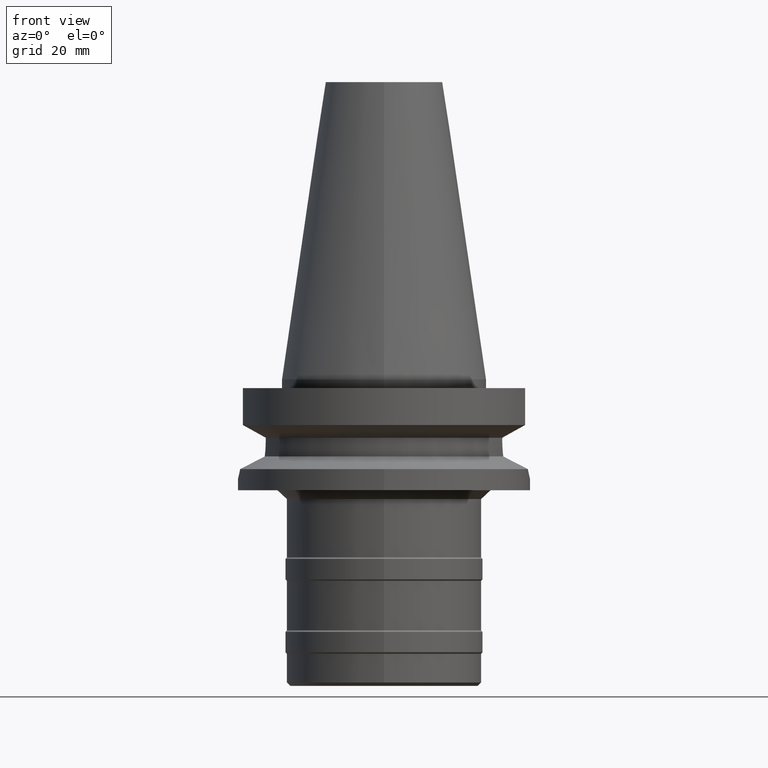
[diagram: clean part render]
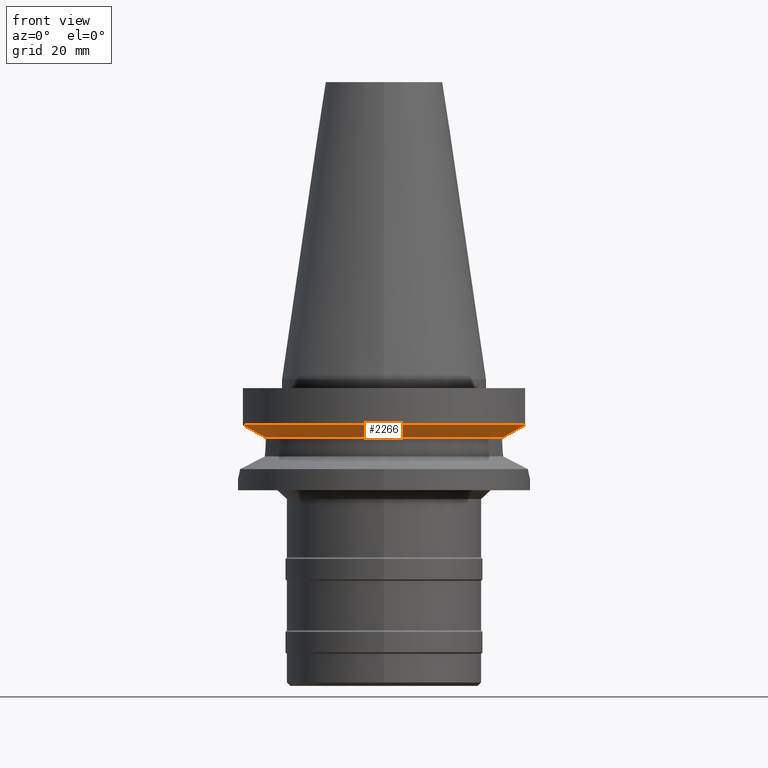
[diagram: same view with one face highlighted and labeled with its STEP entity id]
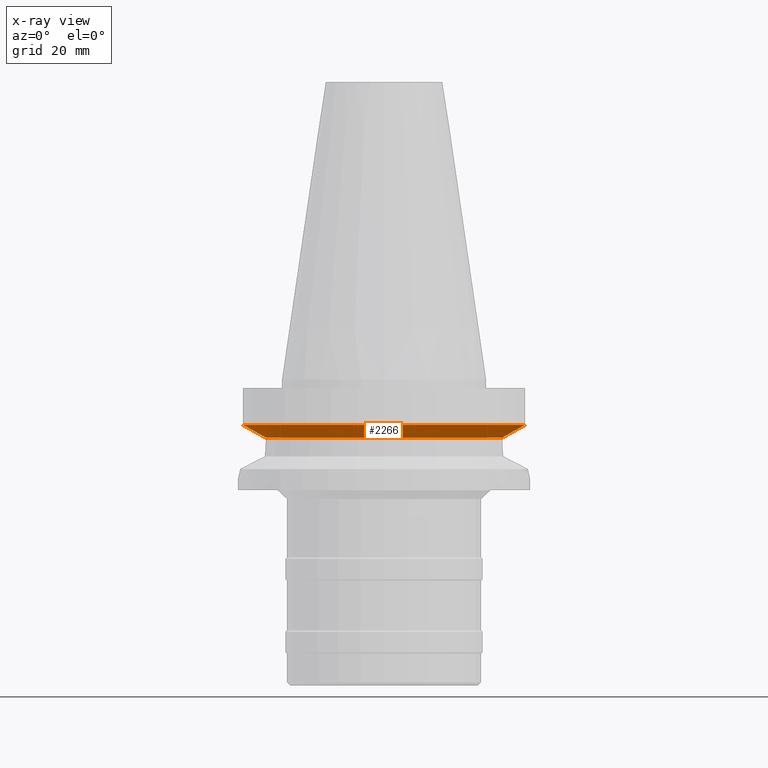
[diagram: x-ray of the same camera — body ghosted, the highlighted face saturated]
A machine part, front view. The second image highlights one B-rep face of the part: STEP entity #2266.
The next image is the same camera in x-ray: the body ghosted, the highlighted face saturated — about 0% of this face is hidden behind the body in this view.
In plain terms, the highlighted conical surface has half-angle 60 deg.
Its self-contained STEP definition (entity closure, byte-faithful):
#1002=CARTESIAN_POINT('',(-4.832056912902E1,-1.285000385397E1,
-1.566265771218E1));
#1003=CARTESIAN_POINT('',(-4.745408731291E1,-1.285000385397E1,
-1.614611804181E1));
#1004=CARTESIAN_POINT('',(-4.572064983821E1,-1.284999774058E1,
-1.711204772786E1));
#1005=CARTESIAN_POINT('',(-4.311729574998E1,-1.285000212701E1,
-1.855526389221E1));
#1006=CARTESIAN_POINT('',(-4.138011683097E1,-1.284999654326E1,
-1.951445450772E1));
#1007=CARTESIAN_POINT('',(-4.051083298129E1,-1.284999654326E1,
-1.999284578272E1));
#1046=CARTESIAN_POINT('',(0.E0,0.E0,-1.566269223573E1));
#1047=DIRECTION('',(0.E0,0.E0,1.E0));
#1048=DIRECTION('',(-9.664114030784E-1,-2.57E-1,0.E0));
#1049=AXIS2_PLACEMENT_3D('',#1046,#1047,#1048);
#1054=CARTESIAN_POINT('',(0.E0,0.E0,-1.566269223573E1));
#1055=DIRECTION('',(0.E0,0.E0,1.E0));
#1056=DIRECTION('',(0.E0,-1.E0,0.E0));
#1057=AXIS2_PLACEMENT_3D('',#1054,#1055,#1056);
#1062=CARTESIAN_POINT('',(0.E0,0.E0,-1.999281925465E1));
#1063=DIRECTION('',(0.E0,0.E0,-1.E0));
#1064=DIRECTION('',(9.531960443487E-1,-3.023529411765E-1,0.E0));
#1065=AXIS2_PLACEMENT_3D('',#1062,#1063,#1064);
#1070=CARTESIAN_POINT('',(0.E0,0.E0,-1.999281925465E1));
#1071=DIRECTION('',(0.E0,0.E0,-1.E0));
#1072=DIRECTION('',(0.E0,-1.E0,0.E0));
#1073=AXIS2_PLACEMENT_3D('',#1070,#1071,#1072);
#1092=CARTESIAN_POINT('',(4.051083298413E1,-1.284999653432E1,
-1.999284585131E1));
#1093=CARTESIAN_POINT('',(4.138011687704E1,-1.284999653432E1,
-1.951445455241E1));
#1094=CARTESIAN_POINT('',(4.311729560824E1,-1.285000213109E1,
-1.855526365368E1));
#1095=CARTESIAN_POINT('',(4.572064965730E1,-1.284999773970E1,
-1.711204739920E1));
#1096=CARTESIAN_POINT('',(4.745408731717E1,-1.285000385330E1,
-1.614611804558E1));
#1097=CARTESIAN_POINT('',(4.832056912920E1,-1.285000385330E1,
-1.566265771822E1));
#1365=CARTESIAN_POINT('',(-4.051083298129E1,-1.284999654326E1,
-1.999284578272E1));
#1366=VERTEX_POINT('',#1365);
#1367=CARTESIAN_POINT('',(4.051083188482E1,-1.285E1,-1.999281925465E1));
#1368=CARTESIAN_POINT('',(0.E0,-4.25E1,-1.999281925465E1));
#1369=VERTEX_POINT('',#1367);
#1370=VERTEX_POINT('',#1368);
#1381=CARTESIAN_POINT('',(-4.832056912902E1,-1.285000385397E1,
-1.566265771218E1));
#1382=VERTEX_POINT('',#1381);
#1412=CARTESIAN_POINT('',(0.E0,-5.E1,-1.566269223573E1));
#1413=CARTESIAN_POINT('',(4.832057015392E1,-1.285E1,-1.566269223573E1));
#1414=VERTEX_POINT('',#1412);
#1415=VERTEX_POINT('',#1413);
#2250=CARTESIAN_POINT('',(0.E0,0.E0,-1.782775574519E1));
#2251=DIRECTION('',(0.E0,0.E0,1.E0));
#2252=DIRECTION('',(0.E0,1.E0,0.E0));
#2253=AXIS2_PLACEMENT_3D('',#2250,#2251,#2252);
#2254=CONICAL_SURFACE('',#2253,4.625E1,6.E1);
#2255=ORIENTED_EDGE('',*,*,#2226,.F.);
#2257=ORIENTED_EDGE('',*,*,#2256,.T.);
#2259=ORIENTED_EDGE('',*,*,#2258,.T.);
#2261=ORIENTED_EDGE('',*,*,#2260,.F.);
#2262=ORIENTED_EDGE('',*,*,#2240,.T.);
#2263=ORIENTED_EDGE('',*,*,#2238,.T.);
#2264=EDGE_LOOP('',(#2255,#2257,#2259,#2261,#2262,#2263));
#2265=FACE_OUTER_BOUND('',#2264,.F.);
#1008=B_SPLINE_CURVE_WITH_KNOTS('',3,(#1002,#1003,#1004,#1005,#1006,#1007),
.UNSPECIFIED.,.F.,.F.,(4,1,1,4),(0.E0,3.333333333333E-1,6.666666666667E-1,1.E0),
.UNSPECIFIED.);
#1050=CIRCLE('',#1049,5.E1);
#1058=CIRCLE('',#1057,5.E1);
#1066=CIRCLE('',#1065,4.25E1);
#1074=CIRCLE('',#1073,4.25E1);
#1098=B_SPLINE_CURVE_WITH_KNOTS('',3,(#1092,#1093,#1094,#1095,#1096,#1097),
.UNSPECIFIED.,.F.,.F.,(4,1,1,4),(0.E0,3.333333333333E-1,6.666666666667E-1,1.E0),
.UNSPECIFIED.);
#2226=EDGE_CURVE('',#1382,#1366,#1008,.T.);
#2238=EDGE_CURVE('',#1370,#1366,#1074,.T.);
#2240=EDGE_CURVE('',#1369,#1370,#1066,.T.);
#2256=EDGE_CURVE('',#1382,#1414,#1050,.T.);
#2258=EDGE_CURVE('',#1414,#1415,#1058,.T.);
#2260=EDGE_CURVE('',#1369,#1415,#1098,.T.);
#2266=ADVANCED_FACE('',(#2265),#2254,.T.);